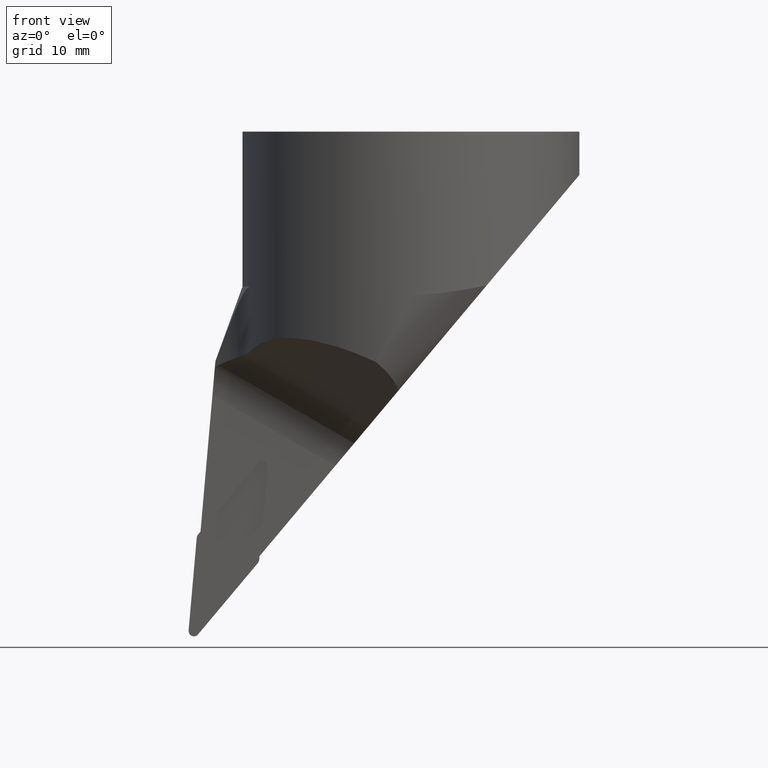
[diagram: clean part render]
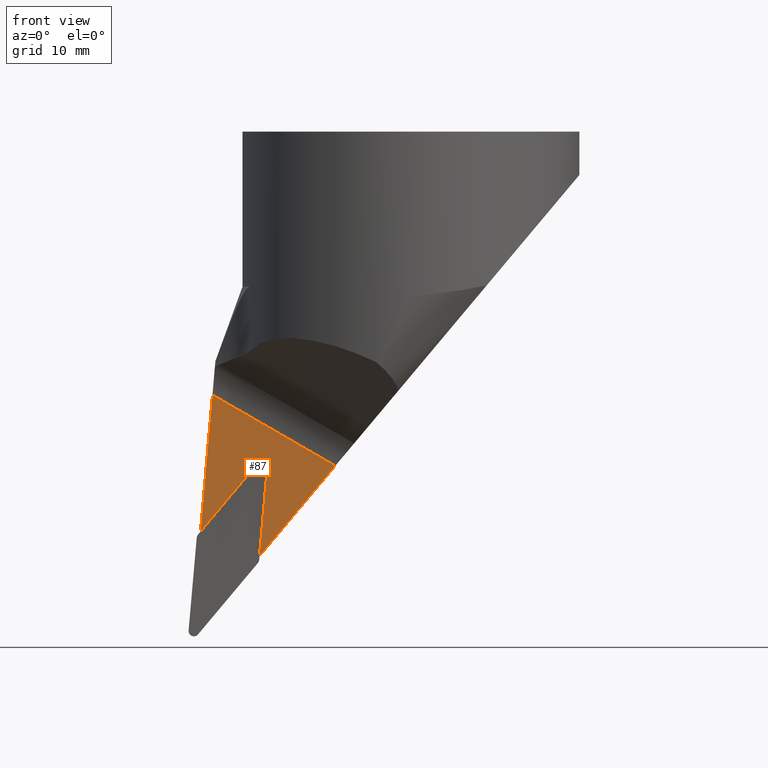
[diagram: same view with one face highlighted and labeled with its STEP entity id]
A machine part, front view. The second image highlights one B-rep face of the part: STEP entity #87.
In plain terms, the highlighted planar face has unit normal (0, -1, 0).
Its self-contained STEP definition (entity closure, byte-faithful):
#87=ADVANCED_FACE('',(#132),#133,.T.);
#132=FACE_OUTER_BOUND('',#268,.T.);
#133=PLANE('',#269);
#268=EDGE_LOOP('',(#396,#397,#398,#399,#400,#401));
#269=AXIS2_PLACEMENT_3D('',#402,#403,#404);
#396=ORIENTED_EDGE('',*,*,#605,.F.);
#397=ORIENTED_EDGE('',*,*,#611,.F.);
#398=ORIENTED_EDGE('',*,*,#612,.F.);
#399=ORIENTED_EDGE('',*,*,#613,.F.);
#400=ORIENTED_EDGE('',*,*,#608,.F.);
#401=ORIENTED_EDGE('',*,*,#610,.F.);
#402=CARTESIAN_POINT('',(-21.7659000007315,-0.300000000000004,-56.6499613196069));
#403=DIRECTION('',(0.0,-1.0,0.0));
#404=DIRECTION('',(0.0,0.0,1.0));
#605=EDGE_CURVE('',#715,#717,#718,.T.);
#608=EDGE_CURVE('',#720,#722,#723,.T.);
#610=EDGE_CURVE('',#717,#720,#725,.T.);
#611=EDGE_CURVE('',#726,#715,#727,.T.);
#612=EDGE_CURVE('',#728,#726,#729,.T.);
#613=EDGE_CURVE('',#722,#728,#730,.T.);
#715=VERTEX_POINT('',#885);
#717=VERTEX_POINT('',#888);
#718=LINE('',#889,#890);
#720=VERTEX_POINT('',#893);
#722=VERTEX_POINT('',#896);
#723=LINE('',#897,#898);
#725=ELLIPSE('',#901,0.833171726619255,0.8);
#726=VERTEX_POINT('',#902);
#727=LINE('',#903,#904);
#728=VERTEX_POINT('',#905);
#729=LINE('',#906,#907);
#730=LINE('',#908,#909);
#885=CARTESIAN_POINT('',(-22.4705029843688,-0.299999999999998,-62.9947481482237));
#888=CARTESIAN_POINT('',(-21.3154860869451,-0.300000000000004,-49.7928446001006));
#889=CARTESIAN_POINT('',(-21.6148782423993,-0.300000000000004,-53.2149125959782));
#890=VECTOR('',#1192,10.0);
#893=CARTESIAN_POINT('',(-22.7199127183401,-0.300000000000004,-49.2111120420187));
#896=CARTESIAN_POINT('',(-31.2332572213501,-0.299999999999996,-59.3569209419023));
#897=CARTESIAN_POINT('',(-28.7980264014303,-0.300000000000004,-56.4547258624858));
#898=VECTOR('',#1195,10.0);
#901=AXIS2_PLACEMENT_3D('',#1197,#1198,#1199);
#902=CARTESIAN_POINT('',(-11.2166935754424,-0.300000000000003,-49.5829803547652));
#903=CARTESIAN_POINT('',(-11.2166935754424,-0.300000000000003,-49.5829803547652));
#904=VECTOR('',#1200,32.0112151498372);
#905=CARTESIAN_POINT('',(-29.4568106611106,-0.300000000000003,-39.0520438453044));
#906=CARTESIAN_POINT('',(-29.4568106611106,-0.300000000000003,-39.0520438453044));
#907=VECTOR('',#1201,21.0618730189216);
#908=CARTESIAN_POINT('',(-32.3151064260207,-0.299999999999992,-71.7225139349876));
#909=VECTOR('',#1202,32.7952659778906);
#1192=DIRECTION('',(0.0871557427476781,0.0,0.996194698091744));
#1195=DIRECTION('',(-0.642787609559048,0.0,-0.766044443225956));
#1197=CARTESIAN_POINT('',(-22.1171722962574,-0.300000000000004,-49.7421271299129));
#1198=DIRECTION('',(0.0,-1.0,-0.0));
#1199=DIRECTION('',(-0.382683432365105,0.0,-0.92387953251128));
#1200=DIRECTION('',(-0.64278760968654,2.83961448247762E-016,-0.766044443118977));
#1201=DIRECTION('',(0.866025403784439,0.0,-0.499999999999999));
#1202=DIRECTION('',(0.0871557427476589,-3.38531489689283E-016,0.996194698091746));